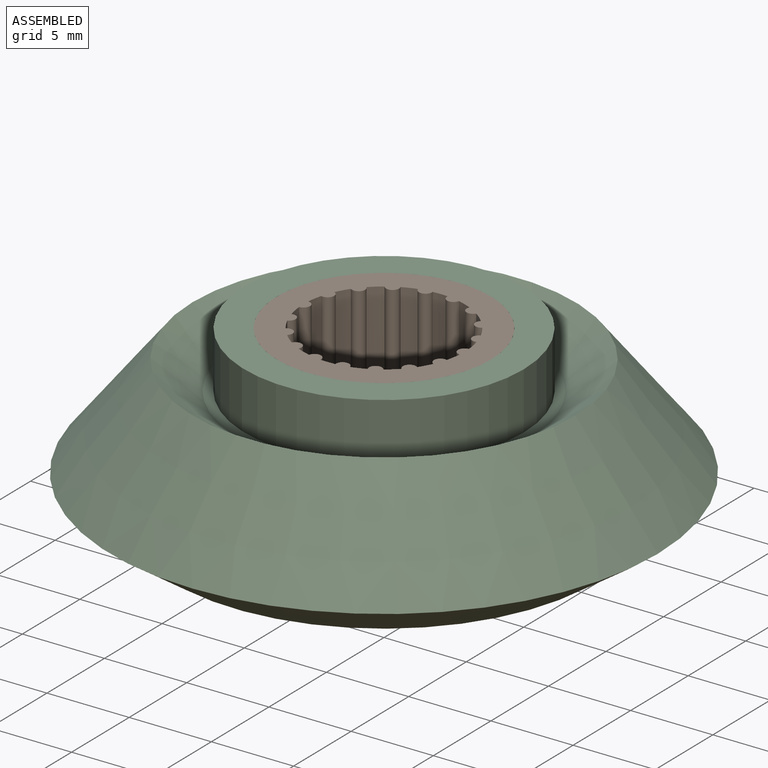
[diagram: assembled view]
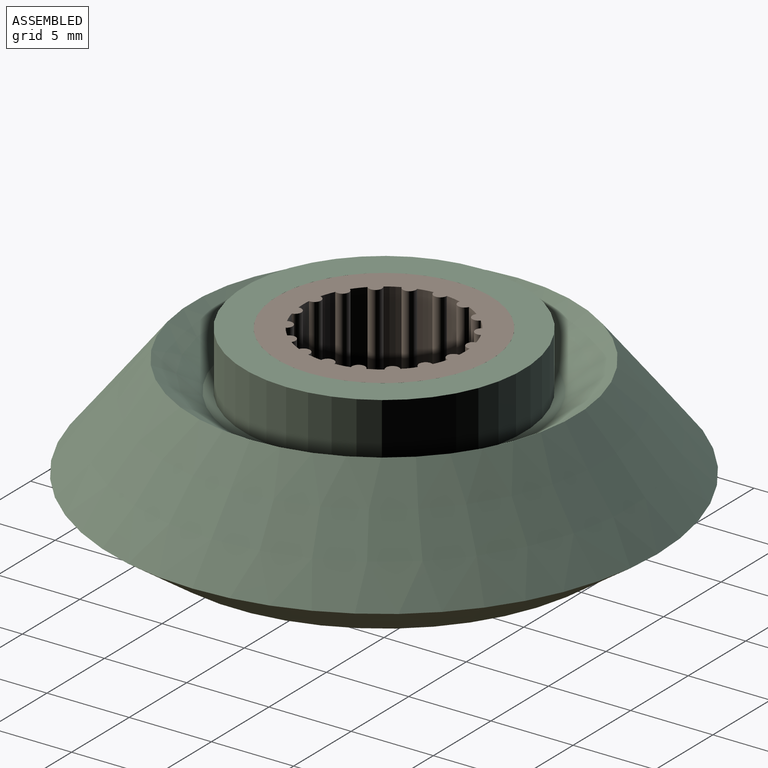
[diagram: assembled view, second angle]
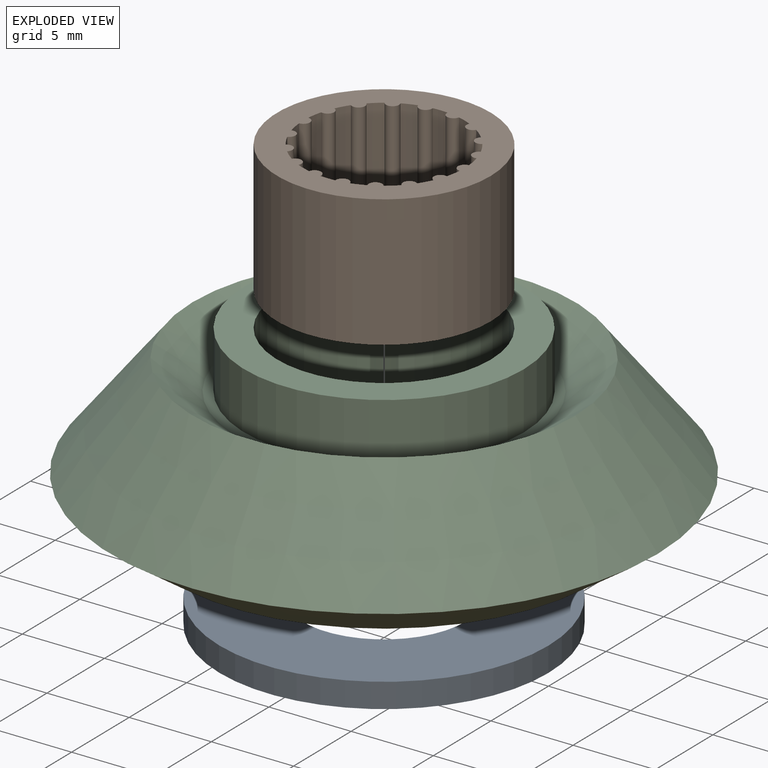
[diagram: exploded view]
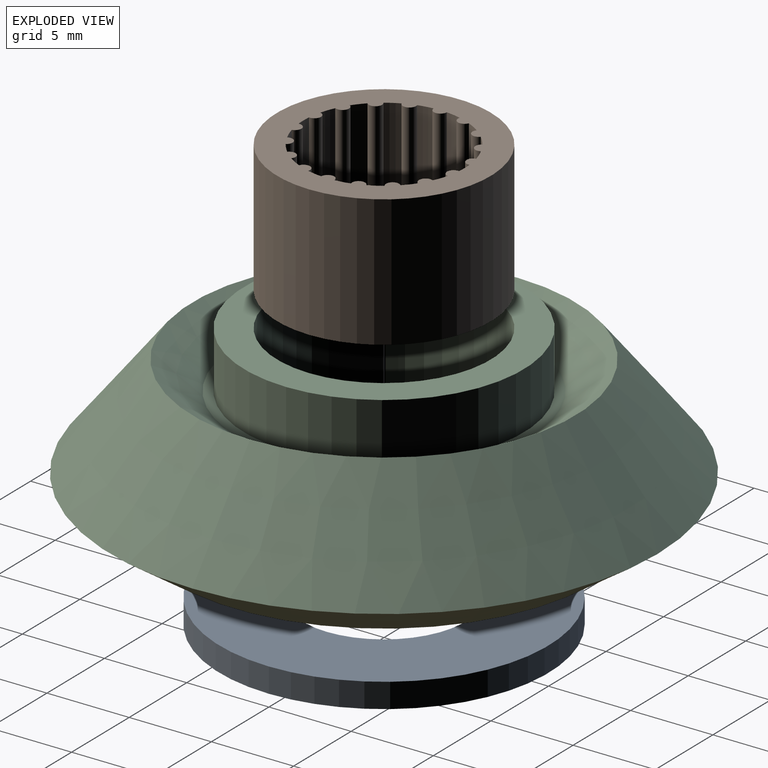
[diagram: exploded view, second angle]
ASSEMBLY  parts=3 mates=2
PART A: 4 faces, bbox 20x20x1.5 mm
  f0: cylinder r=5mm len=10mm, axis (0,0,-1), area 47.1mm2, adj f2,f3
  f1: cylinder r=10mm len=20mm, axis (0,0,-1), area 94.2mm2, adj f2,f3
  f2: plane 20x20mm, normal (0,0,1), area 235.6mm2, adj f0,f1
  f3: plane 20x20mm, normal (0,0,-1), area 235.6mm2, adj f0,f1
PART B: 39 faces, bbox 8x13x13 mm
  f0: cylinder r=0.4mm len=8mm, axis (-1,0,0), area 9.8mm2, adj f1,f3,f4,f5
  f1: cylinder r=4.9mm len=8mm, axis (-1,0,0), area 7.3mm2, adj f0,f4,f5,f6
  f2: cylinder r=6.5mm len=13mm, axis (-1,0,0), area 326.7mm2, adj f4,f5
  f3: cylinder r=4.9mm len=8mm, axis (-1,0,0), area 7.3mm2, adj f0,f4,f5,f38
  f4: plane 13x13mm, normal (1,0,0), area 61.7mm2, adj f0,f1,f2,f3,f6,f7,f8,f9
  f5: plane 13x13mm, normal (-1,0,0), area 61.7mm2, adj f0,f1,f2,f3,f6,f7,f8,f9
  f6: cylinder r=0.4mm len=8mm, axis (-1,0,0), area 9.8mm2, adj f1,f4,f5,f7
  f7: cylinder r=4.9mm len=8mm, axis (-1,0,0), area 7.3mm2, adj f4,f5,f6,f8
  f8: cylinder r=0.4mm len=8mm, axis (-1,0,0), area 9.8mm2, adj f4,f5,f7,f9
  f9: cylinder r=4.9mm len=8mm, axis (-1,0,0), area 7.3mm2, adj f4,f5,f8,f10
  f10: cylinder r=0.4mm len=8mm, axis (-1,0,0), area 9.8mm2, adj f4,f5,f9,f11
  f11: cylinder r=4.9mm len=8mm, axis (-1,0,0), area 7.3mm2, adj f4,f5,f10,f12
  f12: cylinder r=0.4mm len=8mm, axis (-1,0,0), area 9.8mm2, adj f4,f5,f11,f13
  f13: cylinder r=4.9mm len=8mm, axis (-1,0,0), area 7.3mm2, adj f4,f5,f12,f14
  f14: cylinder r=0.4mm len=8mm, axis (-1,0,0), area 9.8mm2, adj f4,f5,f13,f15
  f15: cylinder r=4.9mm len=8mm, axis (-1,0,0), area 7.3mm2, adj f4,f5,f14,f16
  f16: cylinder r=0.4mm len=8mm, axis (-1,0,0), area 9.8mm2, adj f4,f5,f15,f17
  f17: cylinder r=4.9mm len=8mm, axis (-1,0,0), area 7.3mm2, adj f4,f5,f16,f18
  f18: cylinder r=0.4mm len=8mm, axis (-1,0,0), area 9.8mm2, adj f4,f5,f17,f19
  f19: cylinder r=4.9mm len=8mm, axis (-1,0,0), area 7.3mm2, adj f4,f5,f18,f20
  f20: cylinder r=0.4mm len=8mm, axis (-1,0,0), area 9.8mm2, adj f4,f5,f19,f21
  f21: cylinder r=4.9mm len=8mm, axis (-1,0,0), area 7.3mm2, adj f4,f5,f20,f22
  f22: cylinder r=0.4mm len=8mm, axis (-1,0,0), area 9.8mm2, adj f4,f5,f21,f23
  f23: cylinder r=4.9mm len=8mm, axis (-1,0,0), area 7.3mm2, adj f4,f5,f22,f24
  f24: cylinder r=0.4mm len=8mm, axis (-1,0,0), area 9.8mm2, adj f4,f5,f23,f25
  f25: cylinder r=4.9mm len=8mm, axis (-1,0,0), area 7.3mm2, adj f4,f5,f24,f26
  f26: cylinder r=0.4mm len=8mm, axis (-1,0,0), area 9.8mm2, adj f4,f5,f25,f27
  f27: cylinder r=4.9mm len=8mm, axis (-1,0,0), area 7.3mm2, adj f4,f5,f26,f28
  f28: cylinder r=0.4mm len=8mm, axis (-1,0,0), area 9.8mm2, adj f4,f5,f27,f29
  f29: cylinder r=4.9mm len=8mm, axis (-1,0,0), area 7.3mm2, adj f4,f5,f28,f30
  f30: cylinder r=0.4mm len=8mm, axis (-1,0,0), area 9.8mm2, adj f4,f5,f29,f31
  f31: cylinder r=4.9mm len=8mm, axis (-1,0,0), area 7.3mm2, adj f4,f5,f30,f32
  f32: cylinder r=0.4mm len=8mm, axis (-1,0,0), area 9.8mm2, adj f4,f5,f31,f33
  f33: cylinder r=4.9mm len=8mm, axis (-1,0,0), area 7.3mm2, adj f4,f5,f32,f34
  f34: cylinder r=0.4mm len=8mm, axis (-1,0,0), area 9.8mm2, adj f4,f5,f33,f35
  f35: cylinder r=4.9mm len=8mm, axis (-1,0,0), area 7.3mm2, adj f4,f5,f34,f36
  f36: cylinder r=0.4mm len=8mm, axis (-1,0,0), area 9.8mm2, adj f4,f5,f35,f37
  f37: cylinder r=4.9mm len=8mm, axis (-1,0,0), area 7.3mm2, adj f4,f5,f36,f38
  f38: cylinder r=0.4mm len=8mm, axis (-1,0,0), area 9.8mm2, adj f3,f4,f5,f37
PART C: 12 faces, bbox 33.3x33.3x10.5 mm
  f0: cylinder r=6.5mm len=13mm, axis (0,0,-1), area 326.7mm2, adj f1,f11
  f1: plane 13x13mm, normal (0,0,1), area 37.7mm2, adj f0,f2
  f2: cylinder r=5.5mm len=11mm, axis (0,0,-1), area 34.6mm2, adj f1,f3
  f3: plane 20x20mm, normal (0,0,-1), area 219.1mm2, adj f2,f4
  f4: cylinder r=10mm len=20mm, axis (0,0,-1), area 94.2mm2, adj f3,f5
  f5: plane 25.87x25.87mm, normal (0,0,-1), area 211.5mm2, adj f4,f6
  f6: cone r=12.93mm half-angle=55.7deg, axis (0,0,1), area 418.3mm2, adj f5,f7
  f7: cone r=16.65mm half-angle=38.6deg, axis (0,0,-1), area 713.3mm2, adj f6,f8
  f8: cone r=9.05mm half-angle=55.7deg, axis (0,0,1), area 204.6mm2, adj f7,f9
  f9: plane 18.09x18.09mm, normal (0,0,1), area 30.2mm2, adj f8,f10
  f10: cylinder r=8.5mm len=17mm, axis (0,0,-1), area 185.2mm2, adj f9,f11
  f11: plane 17x17mm, normal (0,0,1), area 94.2mm2, adj f0,f10
PLACE A at identity
PLACE B rot(axis=(0.71,0,-0.71),180deg) t=(0,0,10.5)mm
PLACE C at identity
MATE fastened A.f1 <-> C.f0  axis (0,0,1) through (0,0,1.5)mm
MATE fastened B.f2 <-> C.f0  axis (0,0,-1) through (0,0,2.5)mm
